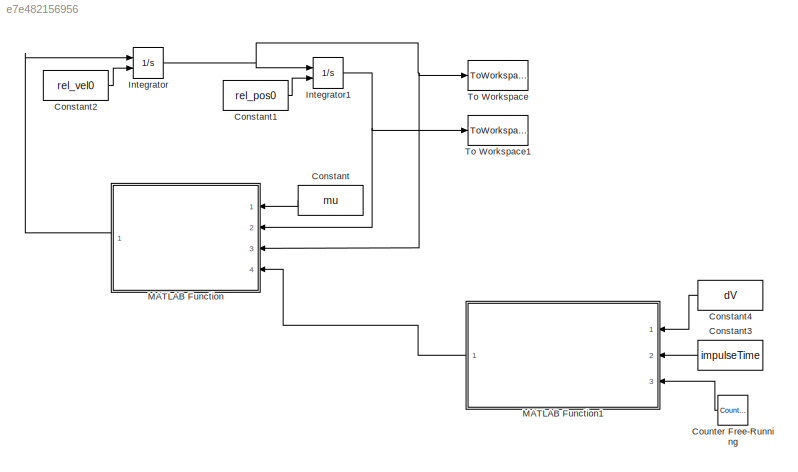
MODEL slx_e7e482156956
KIND model
CONFIG AbsTol = auto
CONFIG EnableMultiTasking = off
CONFIG FixedStep = stepSize
CONFIG MaxStep = auto
CONFIG MinStep = auto
CONFIG RelTol = 1e-3
CONFIG SampleTimeConstraint = Unconstrained
CONFIG Solver = ode4
CONFIG SolverName = ode4
CONFIG StartTime = 0.0
CONFIG StopTime = stopTime
BLOCK [Constant] Constant
  Value = mu
BLOCK [Constant] Constant1
  Value = rel_pos0
BLOCK [Constant] Constant2
  Value = rel_vel0
BLOCK [Constant] Constant3
  Value = impulseTime
BLOCK [Constant] Constant4
  Value = dV
BLOCK [Reference] Counter Free-Running  REF=simulink/Sources/Counter
Free-Running
  Ports = [0, 1]
  SourceBlock = simulink/Sources/Counter\nFree-Running
  SourceProductBaseCode = SL
  SourceProductName = Simulink
  SourceType = Counter Free-Running
BLOCK [Integrator] Integrator
  InitialConditionSource = external
  Ports = [2, 1]
BLOCK [Integrator] Integrator1
  InitialConditionSource = external
  Ports = [2, 1]
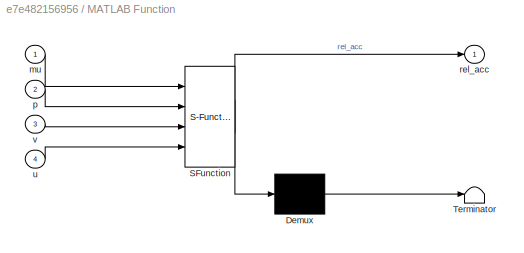
BLOCK [SubSystem] MATLAB Function
  ErrorFcn = Stateflow.Translate.translate
  PermitHierarchicalResolution = ExplicitOnly
  Ports = [4, 1]
  RequestExecContextInheritance = off
  SFBlockType = MATLAB Function
  TreatAsAtomicUnit = on
  Variant = off
BLOCK [Demux] MATLAB Function/ Demux 
  Outputs = 1
  Ports = [1, 1]
BLOCK [S-Function] MATLAB Function/ SFunction 
  EnableBusSupport = on
  FunctionName = sf_sfun
  PortCounts = [4 2]
  Ports = [4, 2]
  SFcnIsStateOwnerBlock = off
  SFunctionDeploymentMode = off
  Tag = Stateflow S-Function relative_orbit_prop 2
BLOCK [Terminator] MATLAB Function/ Terminator 
BLOCK [Inport] MATLAB Function/mu
  IconDisplay = Port number
BLOCK [Inport] MATLAB Function/p
  IconDisplay = Port number
  Port = 2
BLOCK [Outport] MATLAB Function/rel_acc
  IconDisplay = Port number
BLOCK [Inport] MATLAB Function/u
  IconDisplay = Port number
  Port = 4
BLOCK [Inport] MATLAB Function/v
  IconDisplay = Port number
  Port = 3
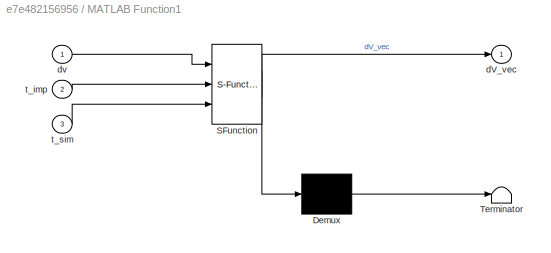
BLOCK [SubSystem] MATLAB Function1
  ErrorFcn = Stateflow.Translate.translate
  PermitHierarchicalResolution = ExplicitOnly
  Ports = [3, 1]
  RequestExecContextInheritance = off
  SFBlockType = MATLAB Function
  TreatAsAtomicUnit = on
  Variant = off
BLOCK [Demux] MATLAB Function1/ Demux 
  Outputs = 1
  Ports = [1, 1]
BLOCK [S-Function] MATLAB Function1/ SFunction 
  EnableBusSupport = on
  FunctionName = sf_sfun
  PortCounts = [3 2]
  Ports = [3, 2]
  SFcnIsStateOwnerBlock = off
  SFunctionDeploymentMode = off
  Tag = Stateflow S-Function relative_orbit_prop 1
BLOCK [Terminator] MATLAB Function1/ Terminator 
BLOCK [Outport] MATLAB Function1/dV_vec
  IconDisplay = Port number
BLOCK [Inport] MATLAB Function1/dv
  IconDisplay = Port number
BLOCK [Inport] MATLAB Function1/t_imp
  IconDisplay = Port number
  Port = 2
BLOCK [Inport] MATLAB Function1/t_sim
  IconDisplay = Port number
  Port = 3
BLOCK [ToWorkspace] To Workspace
  FixptAsFi = on
  MaxDataPoints = inf
  Ports = [1]
  SampleTime = -1
  Save2DSignal = 3-D array (concatenate along third dimension)
  VariableName = rel_vel_RTN
BLOCK [ToWorkspace] To Workspace1
  FixptAsFi = on
  MaxDataPoints = inf
  Ports = [1]
  SampleTime = -1
  Save2DSignal = 3-D array (concatenate along third dimension)
  VariableName = rel_pos_RTN
LINE Constant1:1 -> Integrator1:2
LINE Constant2:1 -> Integrator:2
LINE Constant3:1 -> MATLAB Function1:2
LINE Constant4:1 -> MATLAB Function1:1
LINE Constant:1 -> MATLAB Function:1
LINE Counter Free-Running:1 -> MATLAB Function1:3
NET Integrator1:1 -> MATLAB Function:2, To Workspace1:1
NET Integrator:1 -> Integrator1:1, MATLAB Function:3, To Workspace:1
LINE MATLAB Function1:1 -> MATLAB Function:4
LINE MATLAB Function:1 -> Integrator:1
note: NET lines group one-source signal fan-out (src -> all destinations, sorted); 1:1 wires keep LINE
CHART MATLAB Function1 states=1 transitions=1
  STATE_LABEL 'eML_blk_kernel()'
  STATE_LABEL 'SCRIPT:\nfunction dV_vec = impulse_man(dv,t_imp,t_sim)\n\nif(t_sim == t_imp)\n    dV_vec = [dv(1);dv(2);dv(3);0;0];\nelse\n    dV_vec = [0;0;0;0;0];\nend\n'
CHART MATLAB Function states=1 transitions=1
  STATE_LABEL 'eML_blk_kernel()'
  STATE_LABEL 'SCRIPT:\nfunction rel_acc  = rel_accel(mu,p,v,u)\n\ndenom = ((p(4)+p(1))^2 + p(2)^2 + p(3)^2)^(3/2);\n\nrdd = p(4)*v(5)^2 - mu/(p(4)^2)+u(4); %\nthdd = -2*v(4)*v(5)/p(4)+u(5);\nxdd = 2*v(5)*v(2) + thdd*p(2) + v(5)^2*p(1) -...\n    (mu*(p(4)+p(1)))/denom + mu/(p(4)^2)+u(1);\nydd = -2*v(5)*v(1) - thdd*p(1) + v(5)^2*p(2) -...\n    (mu*p(2))/denom+u(2);\nzdd = -(mu*p(3))/denom+u(3);\n\nrel_acc = [xdd,ydd,zdd,rdd,t...<+10ch>'
